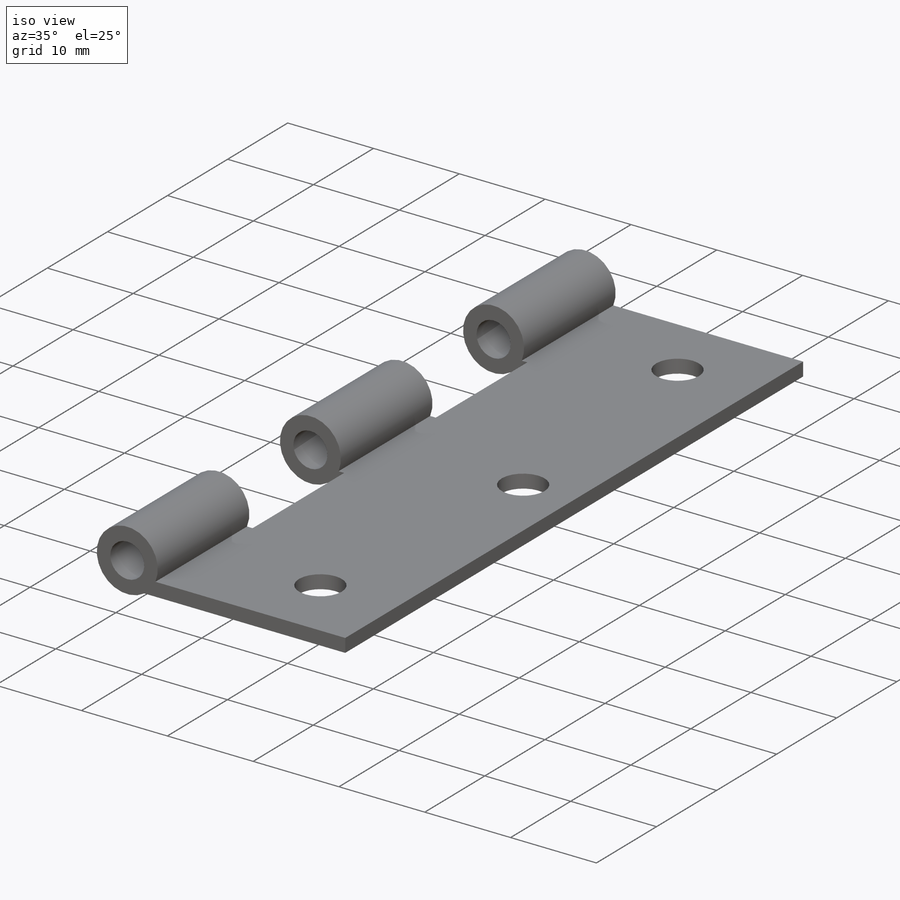
[diagram: iso view]
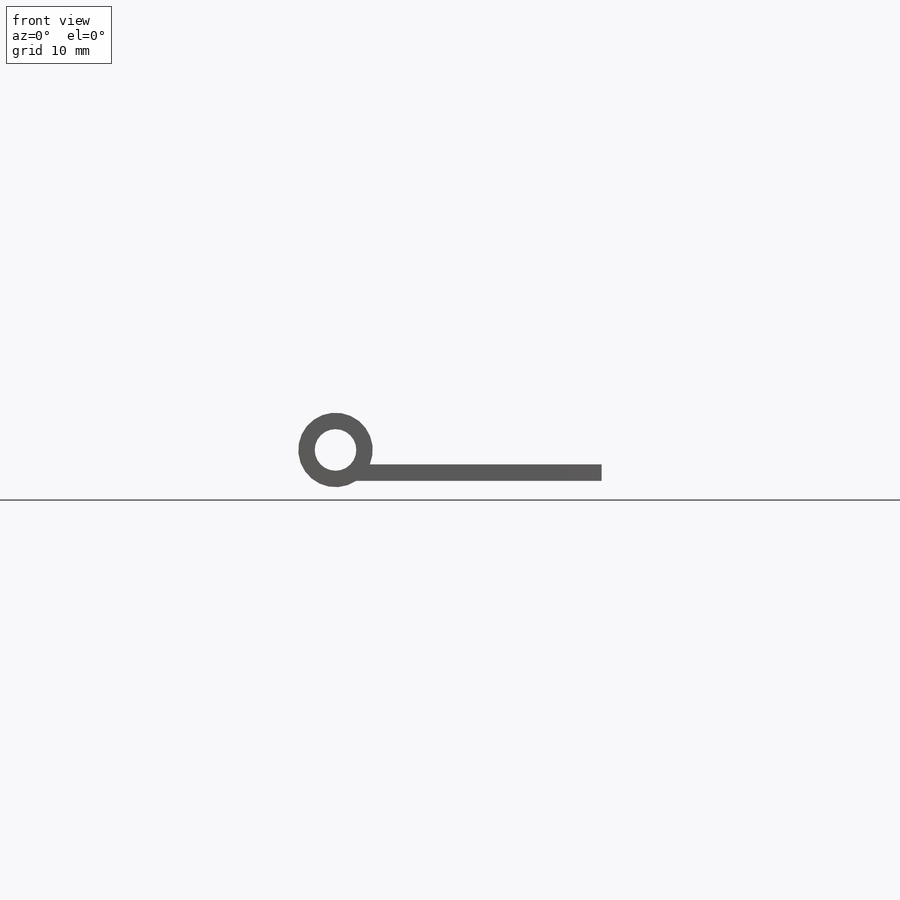
[diagram: front view]
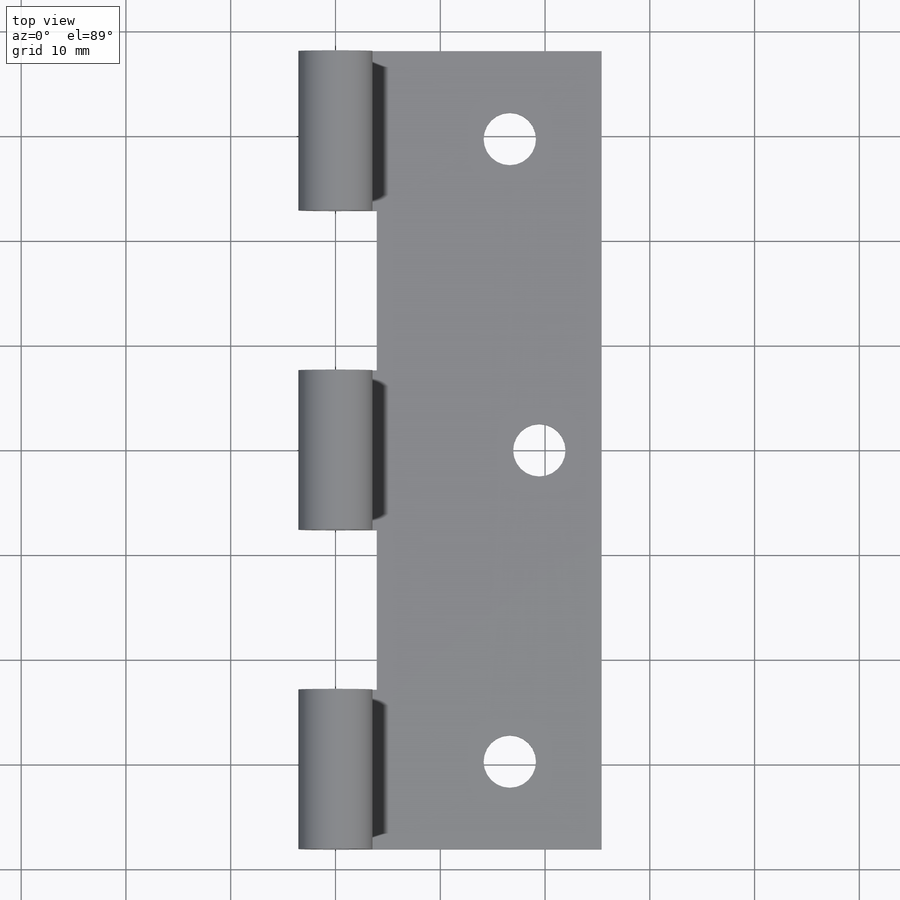
[diagram: top view]
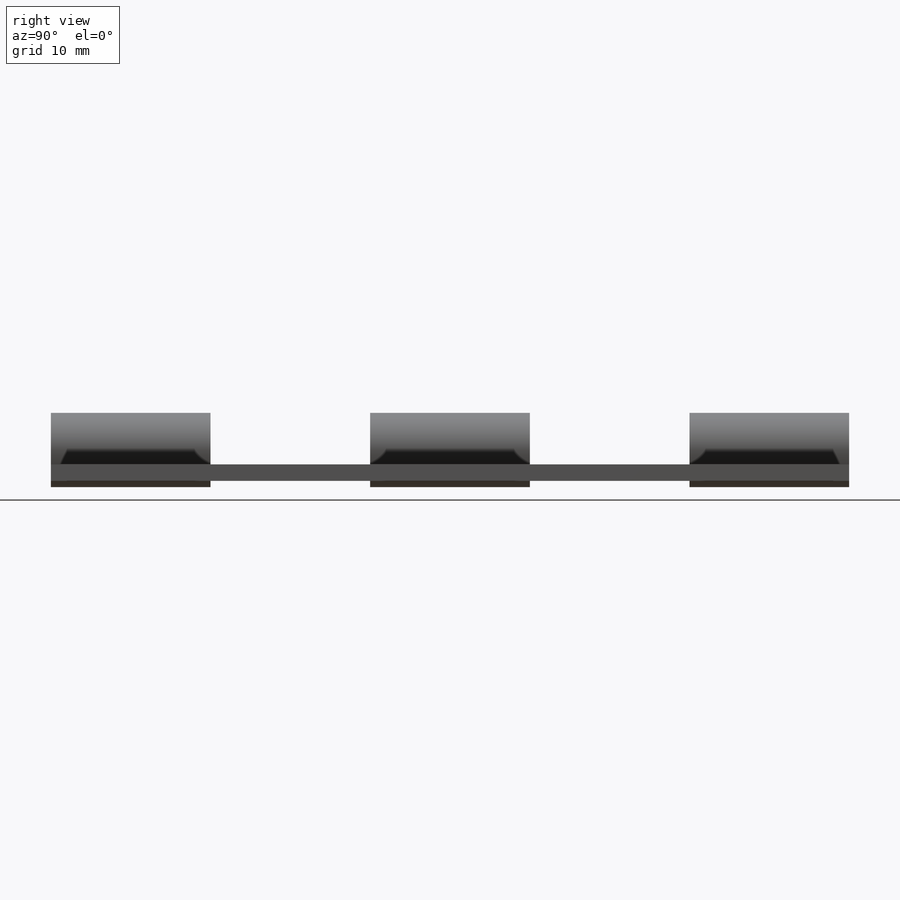
[diagram: right view]
SOLIDWORKS PART (.sldprt)
format: sldprt  version: not decoded by parser v0  size: 279,040 bytes
history: native  units: mm
features: sketch x12, hole x4, plane x3, cut_extrude x3, material x1, extrude x1 (+13 scaffold rows collapsed)
feature tree (37):
  scaffold x13  (default folders/planes/origin — collapsed)
  material  "Material <not specified>"
  plane  "Plane1"  Offset=38.1mm
  sketch  "Sketch1"
  extrude  "Boss-Extrude1"  Depth=76.2mm
  plane  "Plane2"
  sketch  "Sketch6"
  cut_extrude  "Cut-Extrude1"  Depth=15.24mm
  plane  "Plane3"
  sketch  "Sketch12"
  cut_extrude  "Cut-Extrude2"  Depth=15.24mm
  hole  "CSK for M3 Flat Head Machine Screw1"  Diameter=3.5052mm Depth=2.179971mm
  sketch  "Sketch14"
  sketch  "Sketch13"  dims[hole-wizard template sketch: 54 standard entries collapsed; hole parameters kept: c17.Thru Hole Dia.=3.5052mm c17.Thru Hole Depth=~2.179971mm c17.Near C'Sink Dia.=~4.874153mm c17.D4=~3.666174mm c17.Near C'Sink Angle=82.0deg]
  hole  "M3.5 Clearance Hole1"  Diameter=3.96875mm Depth=15.24mm
  sketch  "Sketch16"
  sketch  "Sketch15"  dims[hole-wizard template sketch: 60 standard entries collapsed; hole parameters kept: c18.Thru Hole Depth=15.24mm]
  hole  "M3.5 Clearance Hole2"  Diameter=3.96875mm Depth=15.24mm
  sketch  "Sketch18"
  sketch  "Sketch17"  dims[hole-wizard template sketch: 60 standard entries collapsed; hole parameters kept: c18.Thru Hole Depth=15.24mm]
  hole  "M3.5 Clearance Hole3"  Diameter=3.96875mm Depth=45.72mm
  sketch  "Sketch20"
  sketch  "Sketch19"  dims[hole-wizard template sketch: 60 standard entries collapsed; hole parameters kept: c18.Thru Hole Depth=45.72mm]
  sketch  "Sketch21"  dims[D1=5.0mm]
  cut_extrude  "Cut-Extrude3"  [1 undecoded]
decode coverage: 12 of 20 modeling features carry decoded parameters
note: ~ marks probable driven/reference dimensions
note: 1 parameter value undecoded
summary: Diameter pulled from absorbed wizard sketch
note: suppression state not decoded; provenance and decode notes live in map.json
